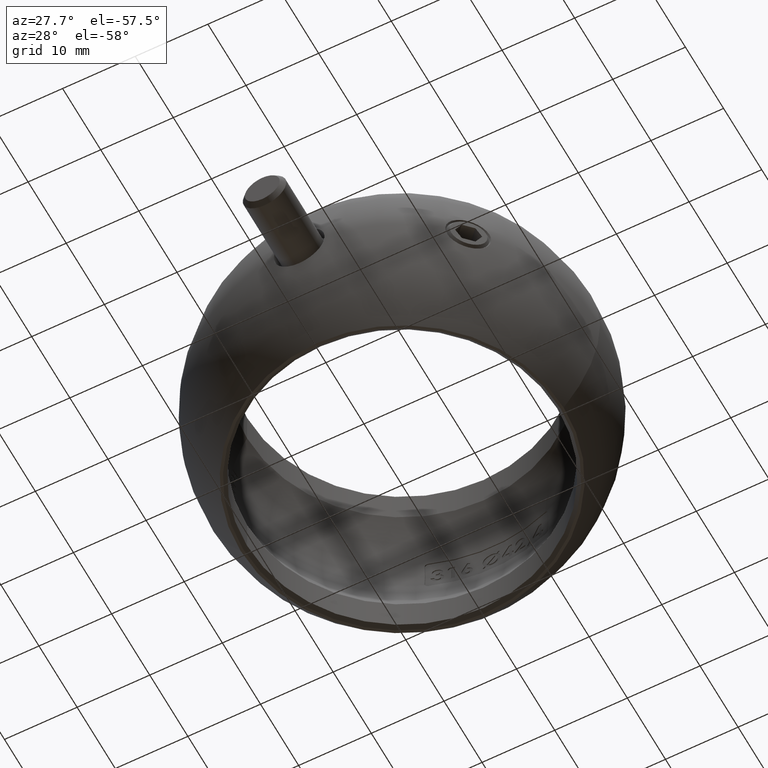
[diagram: clean part render]
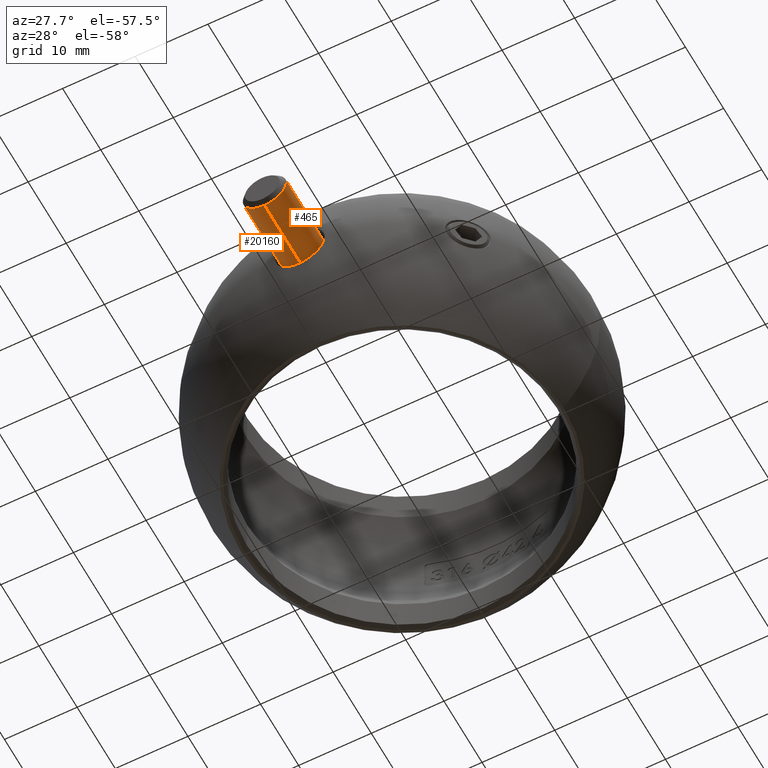
[diagram: same view with one multi-face feature highlighted, each face labeled with its STEP entity id]
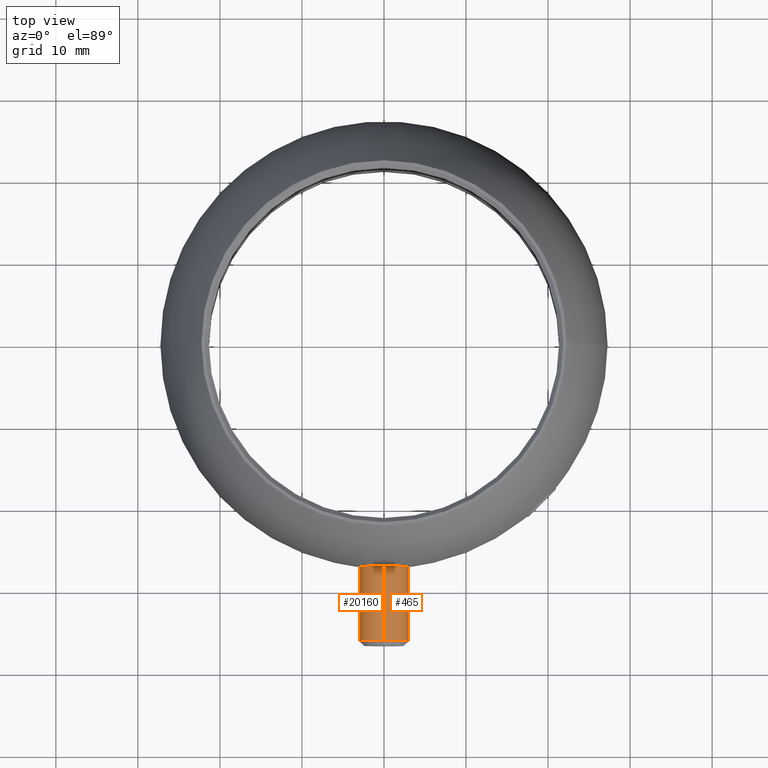
[diagram: same view with one multi-face feature highlighted, each face labeled with its STEP entity id]
A machine part, auxiliary view. The highlighted faces form ONE feature: a constant-radius fillet chain: 2 tangent blend faces with common blend radius 3 mm. The faces share edges in the B-rep.
A second angle (top view) of the same feature is appended — it is thin or edge-on in the first view.
Their STEP definitions:
[1] entity #20160 (Cylinder):
#265 = CARTESIAN_POINT ( 'NONE',  ( 5.510910596163086597E-16, -2.999999999999996447, 3.300000000000002931 ) ) ;
#350 = EDGE_CURVE ( 'NONE', #14560, #6819, #7107, .T. ) ;
#572 = DIRECTION ( 'NONE',  ( -0.000000000000000000, 1.224646799147353207E-16, -1.000000000000000000 ) ) ;
#575 = DIRECTION ( 'NONE',  ( 0.000000000000000000, -1.000000000000000000, 0.000000000000000000 ) ) ;
#1135 = FACE_OUTER_BOUND ( 'NONE', #7251, .T. ) ;
#1459 = EDGE_CURVE ( 'NONE', #14560, #2596, #16201, .T. ) ;
#1634 = CYLINDRICAL_SURFACE ( 'NONE', #2952, 2.999999999999998224 ) ;
#1676 = VERTEX_POINT ( 'NONE', #16461 ) ;
#1938 = ORIENTED_EDGE ( 'NONE', *, *, #1459, .F. ) ;
#1985 = ORIENTED_EDGE ( 'NONE', *, *, #8248, .F. ) ;
#2596 = VERTEX_POINT ( 'NONE', #265 ) ;
#2952 = AXIS2_PLACEMENT_3D ( 'NONE', #6997, #8425, #19821 ) ;
#3598 = DIRECTION ( 'NONE',  ( -0.000000000000000000, 1.224646799147353207E-16, -1.000000000000000000 ) ) ;
#4528 = CARTESIAN_POINT ( 'NONE',  ( 3.673940397442057403E-16, -3.000000000000000444, 13.39999999999999680 ) ) ;
#4540 = EDGE_CURVE ( 'NONE', #6819, #1676, #19480, .T. ) ;
#4929 = ORIENTED_EDGE ( 'NONE', *, *, #350, .T. ) ;
#6556 = DIRECTION ( 'NONE',  ( -0.000000000000000000, 1.224646799147352961E-16, -1.000000000000000000 ) ) ;
#6819 = VERTEX_POINT ( 'NONE', #19151 ) ;
#6997 = CARTESIAN_POINT ( 'NONE',  ( 0.000000000000000000, 0.000000000000000000, 0.000000000000000000 ) ) ;
#7107 = CIRCLE ( 'NONE', #20136, 2.999999999999998224 ) ;
#7251 = EDGE_LOOP ( 'NONE', ( #1938, #4929, #10571, #1985 ) ) ;
#8248 = EDGE_CURVE ( 'NONE', #2596, #1676, #14162, .T. ) ;
#8425 = DIRECTION ( 'NONE',  ( -0.000000000000000000, 1.224646799147353207E-16, -1.000000000000000000 ) ) ;
#10487 = DIRECTION ( 'NONE',  ( -0.000000000000000000, 1.224646799147353207E-16, -1.000000000000000000 ) ) ;
#10571 = ORIENTED_EDGE ( 'NONE', *, *, #4540, .T. ) ;
#11404 = DIRECTION ( 'NONE',  ( 0.000000000000000000, 1.000000000000000000, 1.445602896647341135E-16 ) ) ;
#12937 = VECTOR ( 'NONE', #572, 1000.000000000000000 ) ;
#14162 = CIRCLE ( 'NONE', #20888, 2.999999999999996003 ) ;
#14560 = VERTEX_POINT ( 'NONE', #4528 ) ;
#15194 = VECTOR ( 'NONE', #3598, 1000.000000000000000 ) ;
#15428 = CARTESIAN_POINT ( 'NONE',  ( 0.000000000000000000, -1.641026710857452918E-15, 13.39999999999999680 ) ) ;
#16201 = LINE ( 'NONE', #18365, #12937 ) ;
#16260 = CARTESIAN_POINT ( 'NONE',  ( 0.000000000000000000, -4.041334437186268961E-16, 3.300000000000003375 ) ) ;
#16461 = CARTESIAN_POINT ( 'NONE',  ( 0.000000000000000000, 2.999999999999995559, 3.300000000000003819 ) ) ;
#18365 = CARTESIAN_POINT ( 'NONE',  ( 3.673940397442057896E-16, -2.999999999999998224, -3.673940397442057896E-16 ) ) ;
#19151 = CARTESIAN_POINT ( 'NONE',  ( 0.000000000000000000, 2.999999999999996003, 13.39999999999999680 ) ) ;
#19375 = CARTESIAN_POINT ( 'NONE',  ( 0.000000000000000000, 2.999999999999998224, 3.673940397442057896E-16 ) ) ;
#19480 = LINE ( 'NONE', #19375, #15194 ) ;
#19821 = DIRECTION ( 'NONE',  ( 0.000000000000000000, 1.000000000000000000, 1.224646799147353454E-16 ) ) ;
#20136 = AXIS2_PLACEMENT_3D ( 'NONE', #15428, #10487, #575 ) ;
#20160 = ADVANCED_FACE ( 'NONE', ( #1135 ), #1634, .T. ) ;
#20888 = AXIS2_PLACEMENT_3D ( 'NONE', #16260, #6556, #11404 ) ;
[2] entity #465 (Cylinder):
#265 = CARTESIAN_POINT ( 'NONE',  ( 5.510910596163086597E-16, -2.999999999999996447, 3.300000000000002931 ) ) ;
#465 = ADVANCED_FACE ( 'NONE', ( #16998 ), #9912, .T. ) ;
#572 = DIRECTION ( 'NONE',  ( -0.000000000000000000, 1.224646799147353207E-16, -1.000000000000000000 ) ) ;
#688 = EDGE_CURVE ( 'NONE', #6819, #14560, #16239, .T. ) ;
#1459 = EDGE_CURVE ( 'NONE', #14560, #2596, #16201, .T. ) ;
#1576 = DIRECTION ( 'NONE',  ( -0.000000000000000000, 1.224646799147353207E-16, -1.000000000000000000 ) ) ;
#1676 = VERTEX_POINT ( 'NONE', #16461 ) ;
#1830 = ORIENTED_EDGE ( 'NONE', *, *, #688, .T. ) ;
#2393 = AXIS2_PLACEMENT_3D ( 'NONE', #7862, #1576, #8066 ) ;
#2462 = AXIS2_PLACEMENT_3D ( 'NONE', #19967, #3699, #6869 ) ;
#2596 = VERTEX_POINT ( 'NONE', #265 ) ;
#3598 = DIRECTION ( 'NONE',  ( -0.000000000000000000, 1.224646799147353207E-16, -1.000000000000000000 ) ) ;
#3699 = DIRECTION ( 'NONE',  ( -0.000000000000000000, 1.224646799147352961E-16, -1.000000000000000000 ) ) ;
#4528 = CARTESIAN_POINT ( 'NONE',  ( 3.673940397442057403E-16, -3.000000000000000444, 13.39999999999999680 ) ) ;
#4540 = EDGE_CURVE ( 'NONE', #6819, #1676, #19480, .T. ) ;
#5710 = CARTESIAN_POINT ( 'NONE',  ( 0.000000000000000000, -1.641026710857452918E-15, 13.39999999999999680 ) ) ;
#6819 = VERTEX_POINT ( 'NONE', #19151 ) ;
#6869 = DIRECTION ( 'NONE',  ( 0.000000000000000000, 1.000000000000000000, 1.445602896647341135E-16 ) ) ;
#7517 = CIRCLE ( 'NONE', #2462, 2.999999999999996003 ) ;
#7609 = EDGE_CURVE ( 'NONE', #1676, #2596, #7517, .T. ) ;
#7862 = CARTESIAN_POINT ( 'NONE',  ( 0.000000000000000000, 0.000000000000000000, 0.000000000000000000 ) ) ;
#8066 = DIRECTION ( 'NONE',  ( 0.000000000000000000, 1.000000000000000000, 1.224646799147353454E-16 ) ) ;
#8215 = ORIENTED_EDGE ( 'NONE', *, *, #1459, .T. ) ;
#9912 = CYLINDRICAL_SURFACE ( 'NONE', #2393, 2.999999999999998224 ) ;
#10626 = DIRECTION ( 'NONE',  ( -0.000000000000000000, 1.224646799147353207E-16, -1.000000000000000000 ) ) ;
#12176 = DIRECTION ( 'NONE',  ( 0.000000000000000000, -1.000000000000000000, 0.000000000000000000 ) ) ;
#12937 = VECTOR ( 'NONE', #572, 1000.000000000000000 ) ;
#13189 = ORIENTED_EDGE ( 'NONE', *, *, #7609, .F. ) ;
#14560 = VERTEX_POINT ( 'NONE', #4528 ) ;
#15194 = VECTOR ( 'NONE', #3598, 1000.000000000000000 ) ;
#16201 = LINE ( 'NONE', #18365, #12937 ) ;
#16239 = CIRCLE ( 'NONE', #20832, 2.999999999999998224 ) ;
#16461 = CARTESIAN_POINT ( 'NONE',  ( 0.000000000000000000, 2.999999999999995559, 3.300000000000003819 ) ) ;
#16828 = ORIENTED_EDGE ( 'NONE', *, *, #4540, .F. ) ;
#16998 = FACE_OUTER_BOUND ( 'NONE', #17795, .T. ) ;
#17795 = EDGE_LOOP ( 'NONE', ( #1830, #8215, #13189, #16828 ) ) ;
#18365 = CARTESIAN_POINT ( 'NONE',  ( 3.673940397442057896E-16, -2.999999999999998224, -3.673940397442057896E-16 ) ) ;
#19151 = CARTESIAN_POINT ( 'NONE',  ( 0.000000000000000000, 2.999999999999996003, 13.39999999999999680 ) ) ;
#19375 = CARTESIAN_POINT ( 'NONE',  ( 0.000000000000000000, 2.999999999999998224, 3.673940397442057896E-16 ) ) ;
#19480 = LINE ( 'NONE', #19375, #15194 ) ;
#19967 = CARTESIAN_POINT ( 'NONE',  ( 0.000000000000000000, -4.041334437186268961E-16, 3.300000000000003375 ) ) ;
#20832 = AXIS2_PLACEMENT_3D ( 'NONE', #5710, #10626, #12176 ) ;